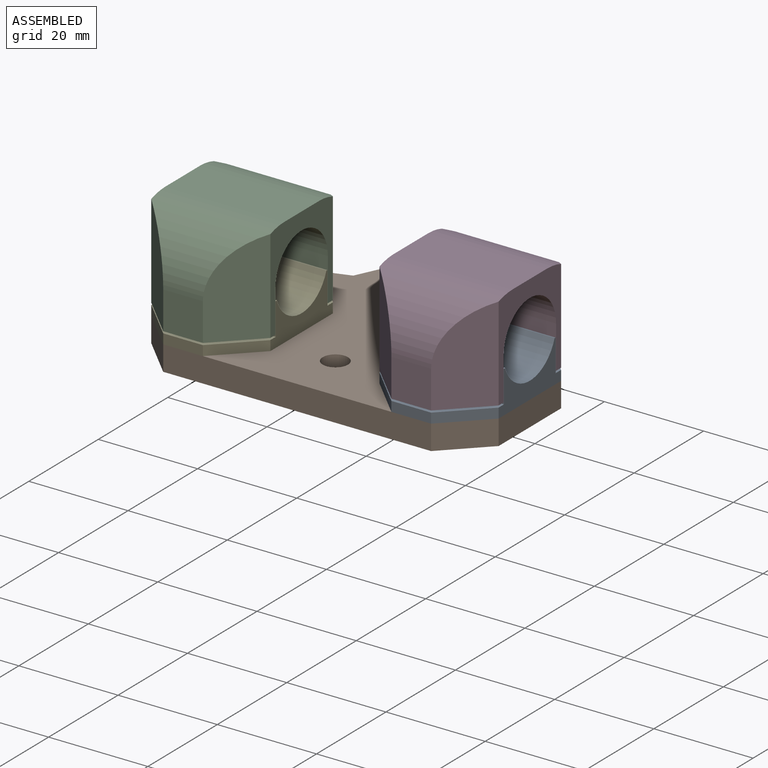
[diagram: assembled view]
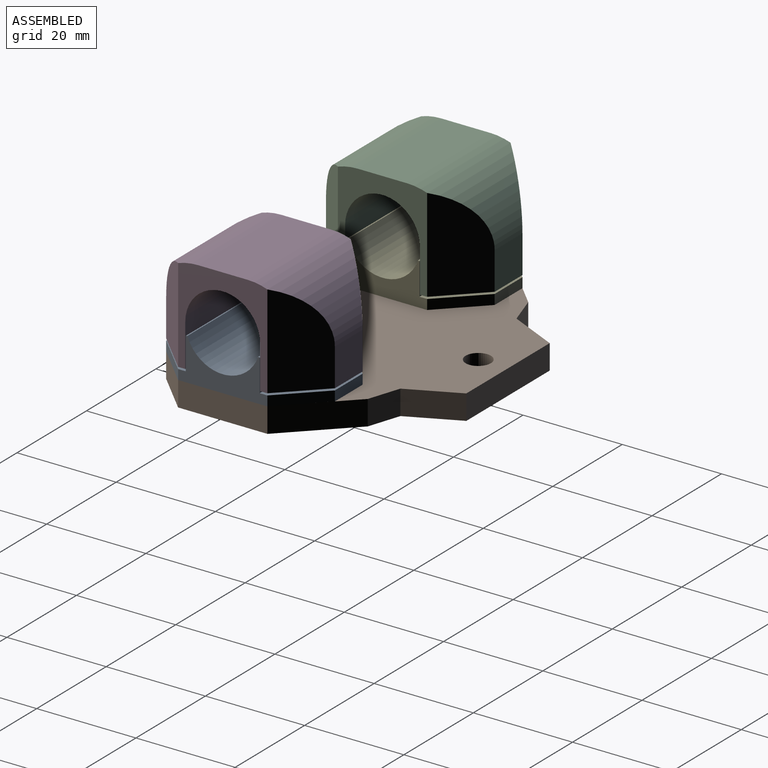
[diagram: assembled view, second angle]
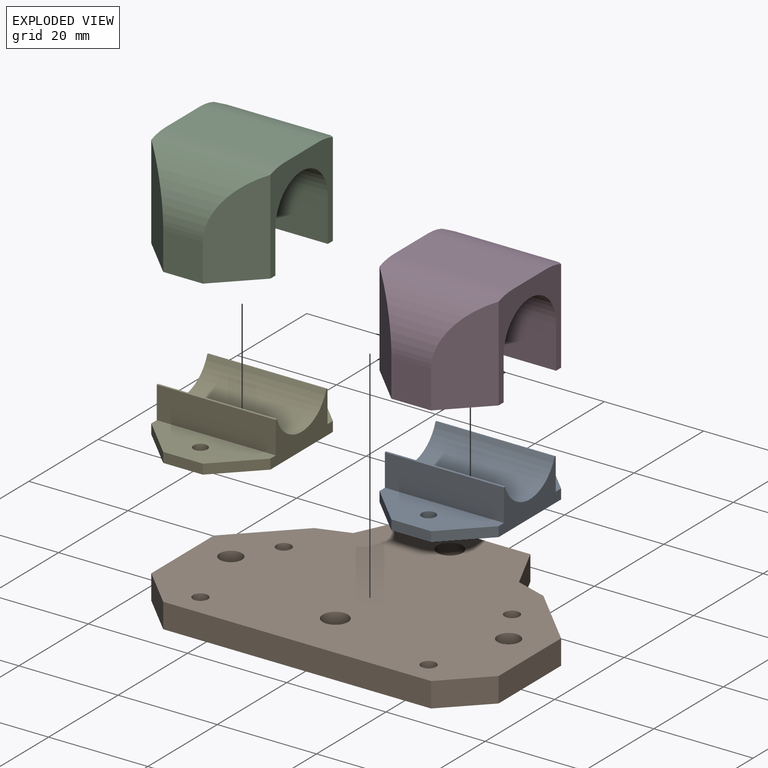
[diagram: exploded view]
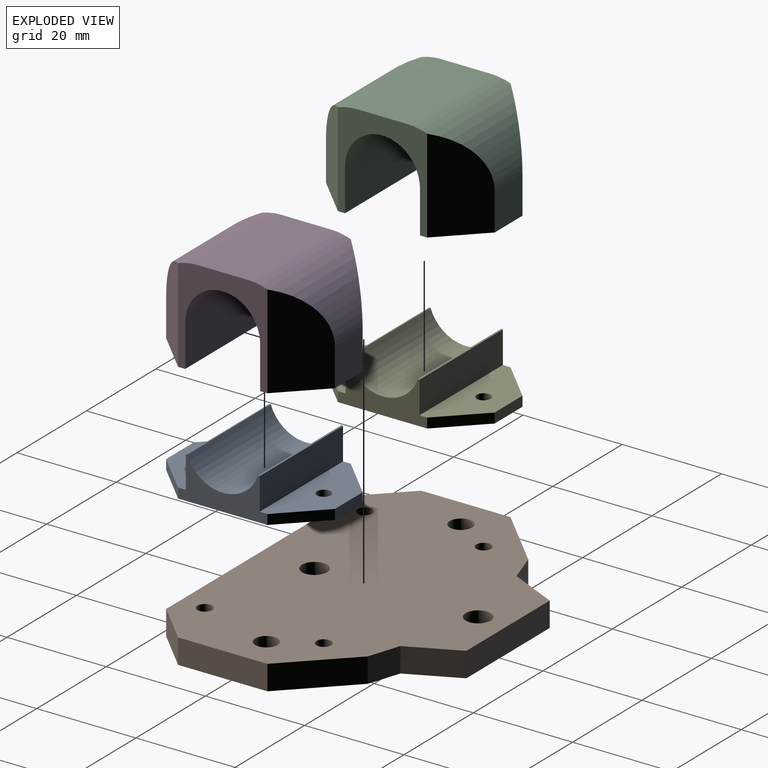
[diagram: exploded view, second angle]
ASSEMBLY  parts=5 mates=4
PART A: 18 faces, bbox 34x24x8.5 mm
  f0: plane 24x9.55mm, normal (0,0,1), area 159mm2, adj f2,f5,f6,f9,f12,f13,f15
  f1: plane 24x9.55mm, normal (0,0,1), area 159mm2, adj f4,f5,f6,f7,f10,f11,f14
  f2: plane 8x2mm, normal (-1,0,0), area 16mm2, adj f0,f3,f12,f13
  f3: plane 34x24mm, normal (0,0,-1), area 675.7mm2, adj f2,f4,f5,f6,f10,f11,f12,f13
  f4: plane 8x2mm, normal (1,0,0), area 16mm2, adj f1,f3,f10,f11
  f5: plane 18x8.52mm, normal (0,-1,0), area 80.4mm2, adj f0,f1,f3,f7,f8,f9,f11,f12
  f6: plane 18x8.52mm, normal (0,1,0), area 80.4mm2, adj f0,f1,f3,f7,f8,f9,f10,f13
  f7: plane 24x6.47mm, normal (1,0,0), area 155.3mm2, adj f1,f5,f6,f16
  f8: cylinder r=7.55mm len=24mm, axis (0,1,0), area 448.2mm2, adj f5,f6,f16,f17
  f9: plane 24x6.47mm, normal (-1,0,0), area 155.3mm2, adj f0,f5,f6,f17
  f10: plane 8x8mm, normal (0.71,0.71,0), area 22.6mm2, adj f1,f3,f4,f6
  f11: plane 8x8mm, normal (0.71,-0.71,0), area 22.6mm2, adj f1,f3,f4,f5
  f12: plane 8x8mm, normal (-0.71,-0.71,0), area 22.6mm2, adj f0,f2,f3,f5
  f13: plane 8x8mm, normal (-0.71,0.71,0), area 22.6mm2, adj f0,f2,f3,f6
  f14: cylinder r=1.4mm len=2.8mm, axis (0,0,-1), area 17.6mm2, adj f1,f3
  f15: cylinder r=1.4mm len=2.8mm, axis (0,0,-1), area 17.6mm2, adj f0,f3
  f16: plane 24x0.32mm, normal (0.17,0,0.99), area 7.7mm2, adj f5,f6,f7,f8
  f17: plane 24x0.32mm, normal (-0.17,0,0.99), area 7.7mm2, adj f5,f6,f8,f9
PART B: 22 faces, bbox 70x50x5 mm
  f0: plane 6.39x5mm, normal (0.31,0.95,0), area 33.6mm2, adj f1,f17,f20,f21
  f1: plane 10x5mm, normal (0.9,0.43,0), area 55.3mm2, adj f0,f2,f20,f21
  f2: plane 24x5mm, normal (0,1,0), area 120mm2, adj f1,f3,f20,f21
  f3: plane 10x5mm, normal (-0.9,0.43,0), area 55.3mm2, adj f2,f4,f20,f21
  f4: plane 6.39x5mm, normal (-0.31,0.95,0), area 33.6mm2, adj f3,f5,f20,f21
  f5: plane 11.9x11.9mm, normal (-0.71,0.71,0), area 84.2mm2, adj f4,f6,f20,f21
  f6: plane 18x5mm, normal (-1,0,0), area 90mm2, adj f5,f7,f20,f21
  f7: plane 8x8mm, normal (-0.71,-0.71,0), area 56.6mm2, adj f6,f8,f20,f21
  f8: plane 54x5mm, normal (0,-1,0), area 270mm2, adj f7,f9,f20,f21
  f9: plane 8x8mm, normal (0.71,-0.71,0), area 56.6mm2, adj f8,f10,f20,f21
  f10: plane 18x5mm, normal (1,0,0), area 90mm2, adj f9,f17,f20,f21
  f11: cylinder r=1.5mm len=5mm, axis (0,0,1), area 47.1mm2, adj f20,f21
  f12: cylinder r=1.5mm len=5mm, axis (0,0,1), area 47.1mm2, adj f20,f21
  f13: cylinder r=1.5mm len=5mm, axis (0,0,1), area 47.1mm2, adj f20,f21
  f14: cylinder r=2.55mm len=5.1mm, axis (0,0,1), area 80.1mm2, adj f20,f21
  f15: cylinder r=2.25mm len=5mm, axis (0,0,1), area 70.7mm2, adj f20,f21
  f16: cylinder r=2.25mm len=5mm, axis (0,0,1), area 70.7mm2, adj f20,f21
  f17: plane 11.9x11.9mm, normal (0.71,0.71,0), area 84.2mm2, adj f0,f10,f20,f21
  f18: cylinder r=2.55mm len=5.1mm, axis (0,0,1), area 80.1mm2, adj f20,f21
  f19: cylinder r=1.5mm len=5mm, axis (0,0,1), area 47.1mm2, adj f20,f21
  f20: plane 70x50mm, normal (0,0,-1), area 2717.1mm2, adj f0,f1,f2,f3,f4,f5,f6,f7
  f21: plane 70x50mm, normal (0,0,1), area 2717.1mm2, adj f0,f1,f2,f3,f4,f5,f6,f7
PART C: 20 faces, bbox 34x24x19.6 mm
  f0: plane 8x7.6mm, normal (1,0,0), area 60.8mm2, adj f2,f3,f14,f15
  f1: plane 8x7.6mm, normal (-1,0,0), area 60.8mm2, adj f4,f5,f12,f13
  f2: plane 24x9.45mm, normal (0,0,-1), area 159.7mm2, adj f0,f6,f7,f9,f14,f15,f18
  f3: cylinder r=12mm len=24mm, axis (0,1,0), area 299mm2, adj f0,f6,f7,f10,f14,f15
  f4: cylinder r=12mm len=24mm, axis (0,1,0), area 299mm2, adj f1,f6,f7,f10,f12,f13
  f5: plane 24x9.45mm, normal (0,0,-1), area 159.7mm2, adj f1,f6,f7,f11,f12,f13,f16
  f6: plane 19.6x18mm, normal (0,-1,0), area 131.6mm2, adj f2,f3,f4,f5,f8,f9,f10,f11
  f7: plane 19.6x18mm, normal (0,1,0), area 131.6mm2, adj f2,f3,f4,f5,f8,f9,f10,f11
  f8: cylinder r=7.55mm len=24mm, axis (0,1,0), area 569.3mm2, adj f6,f7,f9,f11
  f9: plane 24x8.6mm, normal (-1,0,0), area 206.4mm2, adj f2,f6,f7,f8
  f10: plane 24x10mm, normal (0,0,1), area 240mm2, adj f3,f4,f6,f7
  f11: plane 24x8.6mm, normal (1,0,0), area 206.4mm2, adj f5,f6,f7,f8
  f12: plane 18.91x8mm, normal (-0.71,-0.71,0), area 179.3mm2, adj f1,f4,f5,f6
  f13: plane 18.91x8mm, normal (-0.71,0.71,0), area 179.3mm2, adj f1,f4,f5,f7
  f14: plane 18.91x8mm, normal (0.71,0.71,0), area 179.3mm2, adj f0,f2,f3,f7
  f15: plane 18.91x8mm, normal (0.71,-0.71,0), area 179.3mm2, adj f0,f2,f3,f6
  f16: cylinder r=1mm len=12.6mm, axis (0,0,-1), area 79.2mm2, adj f5,f17
  f17: plane 2x2mm, normal (0,0,-1), area 3.1mm2, adj f16
  f18: cylinder r=1mm len=12.6mm, axis (0,0,-1), area 79.2mm2, adj f2,f19
  f19: plane 2x2mm, normal (0,0,-1), area 3.1mm2, adj f18
PART D: same geometry as C
PART E: same geometry as A
PLACE A rot(axis=(0,0,1),90deg) t=(11,0,11)mm
PLACE B at identity fixed
PLACE C rot(axis=(0,0,1),90deg) t=(-35,0,11)mm
PLACE D rot(axis=(0,0,1),90deg) t=(11,0,11)mm
PLACE E rot(axis=(0,0,1),90deg) t=(-35,0,11)mm
MATE fastened A.f15 <-> B.f11  axis (0,0,-1) through (23,-12,0)mm
MATE fastened D.f18 <-> A.f14  axis (0,0,-1) through (23,12,2.4)mm
MATE fastened C.f18 <-> E.f14  axis (0,0,-1) through (-23,12,2.4)mm
MATE fastened E.f14 <-> B.f13  axis (0,0,-1) through (-23,12,0)mm
